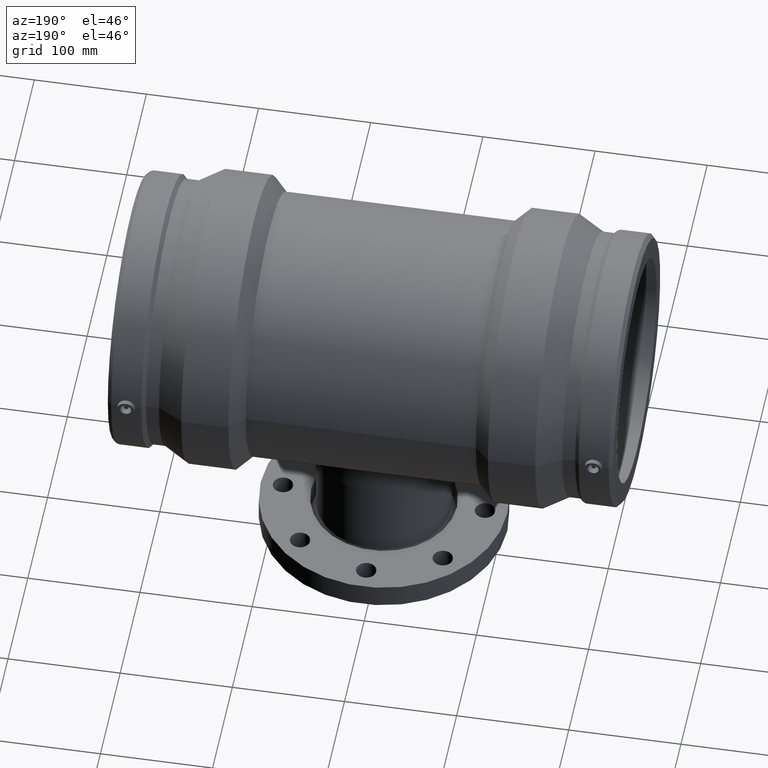
[diagram: clean part render]
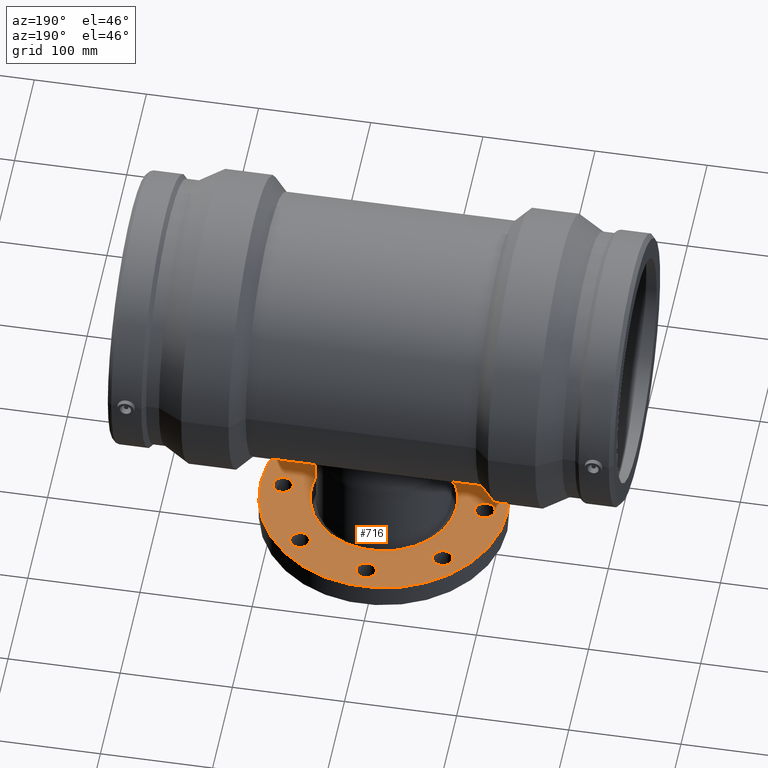
[diagram: same view with one face highlighted and labeled with its STEP entity id]
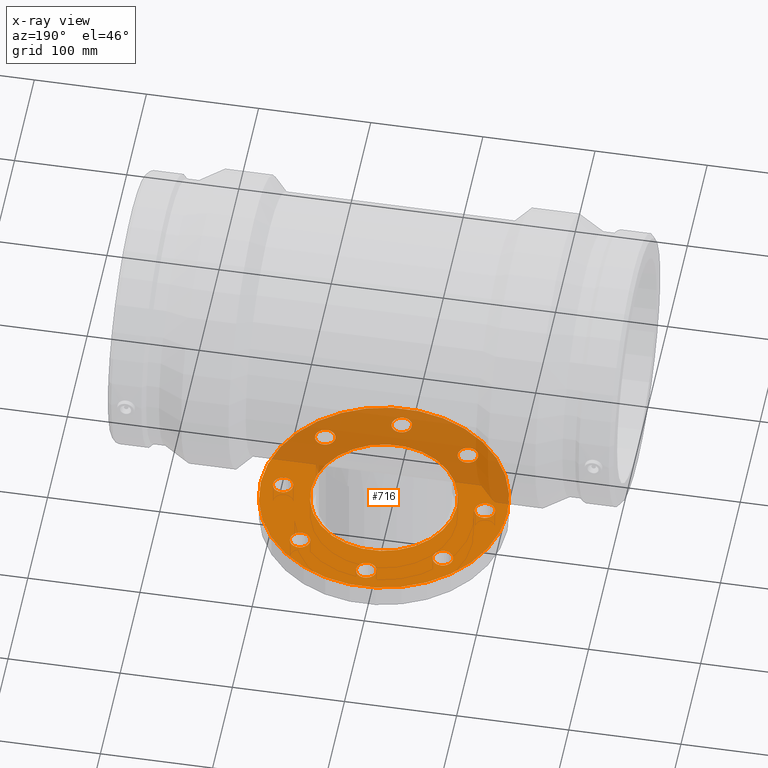
[diagram: x-ray of the same camera — body ghosted, the highlighted face saturated]
A machine part, auxiliary view. The second image highlights one B-rep face of the part: STEP entity #716.
The next image is the same camera in x-ray: the body ghosted, the highlighted face saturated — about 41% of this face is hidden behind the body in this view.
In plain terms, the highlighted planar face has unit normal (0, 0, 1).
Its self-contained STEP definition (entity closure, byte-faithful):
#32=PLANE('',#801);
#60=FACE_BOUND('',#309,.T.);
#61=FACE_BOUND('',#310,.T.);
#62=FACE_BOUND('',#311,.T.);
#63=FACE_BOUND('',#312,.T.);
#64=FACE_BOUND('',#313,.T.);
#65=FACE_BOUND('',#314,.T.);
#66=FACE_BOUND('',#315,.T.);
#67=FACE_BOUND('',#316,.T.);
#68=FACE_BOUND('',#317,.T.);
#121=CIRCLE('',#762,9.);
#123=CIRCLE('',#765,9.);
#125=CIRCLE('',#768,9.);
#127=CIRCLE('',#771,9.);
#129=CIRCLE('',#774,9.);
#131=CIRCLE('',#777,9.);
#133=CIRCLE('',#780,9.);
#135=CIRCLE('',#783,9.);
#144=CIRCLE('',#800,65.);
#145=CIRCLE('',#802,110.);
#232=FACE_OUTER_BOUND('',#308,.T.);
#308=EDGE_LOOP('',(#594));
#309=EDGE_LOOP('',(#595));
#310=EDGE_LOOP('',(#596));
#311=EDGE_LOOP('',(#597));
#312=EDGE_LOOP('',(#598));
#313=EDGE_LOOP('',(#599));
#314=EDGE_LOOP('',(#600));
#315=EDGE_LOOP('',(#601));
#316=EDGE_LOOP('',(#602));
#317=EDGE_LOOP('',(#603));
#421=VERTEX_POINT('',#1407);
#423=VERTEX_POINT('',#1412);
#425=VERTEX_POINT('',#1417);
#427=VERTEX_POINT('',#1422);
#429=VERTEX_POINT('',#1427);
#431=VERTEX_POINT('',#1432);
#433=VERTEX_POINT('',#1437);
#435=VERTEX_POINT('',#1442);
#445=VERTEX_POINT('',#1535);
#446=VERTEX_POINT('',#1538);
#491=EDGE_CURVE('',#421,#421,#121,.T.);
#493=EDGE_CURVE('',#423,#423,#123,.T.);
#495=EDGE_CURVE('',#425,#425,#125,.T.);
#497=EDGE_CURVE('',#427,#427,#127,.T.);
#499=EDGE_CURVE('',#429,#429,#129,.T.);
#501=EDGE_CURVE('',#431,#431,#131,.T.);
#503=EDGE_CURVE('',#433,#433,#133,.T.);
#505=EDGE_CURVE('',#435,#435,#135,.T.);
#515=EDGE_CURVE('',#445,#445,#144,.T.);
#516=EDGE_CURVE('',#446,#446,#145,.T.);
#594=ORIENTED_EDGE('',*,*,#516,.F.);
#595=ORIENTED_EDGE('',*,*,#491,.T.);
#596=ORIENTED_EDGE('',*,*,#493,.T.);
#597=ORIENTED_EDGE('',*,*,#495,.T.);
#598=ORIENTED_EDGE('',*,*,#497,.T.);
#599=ORIENTED_EDGE('',*,*,#499,.T.);
#600=ORIENTED_EDGE('',*,*,#501,.T.);
#601=ORIENTED_EDGE('',*,*,#503,.T.);
#602=ORIENTED_EDGE('',*,*,#505,.T.);
#603=ORIENTED_EDGE('',*,*,#515,.T.);
#716=ADVANCED_FACE('',(#232,#60,#61,#62,#63,#64,#65,#66,#67,#68),#32,.T.);
#762=AXIS2_PLACEMENT_3D('',#1408,#889,#890);
#765=AXIS2_PLACEMENT_3D('',#1413,#895,#896);
#768=AXIS2_PLACEMENT_3D('',#1418,#901,#902);
#771=AXIS2_PLACEMENT_3D('',#1423,#907,#908);
#774=AXIS2_PLACEMENT_3D('',#1428,#913,#914);
#777=AXIS2_PLACEMENT_3D('',#1433,#919,#920);
#780=AXIS2_PLACEMENT_3D('',#1438,#925,#926);
#783=AXIS2_PLACEMENT_3D('',#1443,#931,#932);
#800=AXIS2_PLACEMENT_3D('',#1536,#965,#966);
#801=AXIS2_PLACEMENT_3D('',#1537,#967,#968);
#802=AXIS2_PLACEMENT_3D('',#1539,#969,#970);
#889=DIRECTION('center_axis',(-1.22464679914735E-16,0.,-1.));
#890=DIRECTION('ref_axis',(0.707106781186547,0.707106781186548,0.));
#895=DIRECTION('center_axis',(-1.22464679914735E-16,0.,-1.));
#896=DIRECTION('ref_axis',(-1.2335811384724E-16,1.,0.));
#901=DIRECTION('center_axis',(-1.22464679914735E-16,0.,-1.));
#902=DIRECTION('ref_axis',(-0.707106781186548,0.707106781186547,0.));
#907=DIRECTION('center_axis',(-1.22464679914735E-16,0.,-1.));
#908=DIRECTION('ref_axis',(-1.,-1.2335811384724E-16,0.));
#913=DIRECTION('center_axis',(-1.22464679914735E-16,0.,-1.));
#914=DIRECTION('ref_axis',(-0.707106781186547,-0.707106781186548,0.));
#919=DIRECTION('center_axis',(-1.22464679914735E-16,0.,-1.));
#920=DIRECTION('ref_axis',(0.,-1.,0.));
#925=DIRECTION('center_axis',(-1.22464679914735E-16,0.,-1.));
#926=DIRECTION('ref_axis',(0.707106781186548,-0.707106781186547,0.));
#931=DIRECTION('center_axis',(-1.22464679914735E-16,0.,-1.));
#932=DIRECTION('ref_axis',(1.,0.,0.));
#965=DIRECTION('center_axis',(-1.22464679914735E-16,0.,-1.));
#966=DIRECTION('ref_axis',(1.,0.,-1.22464679914735E-16));
#967=DIRECTION('center_axis',(1.22464679914735E-16,0.,1.));
#968=DIRECTION('ref_axis',(1.,0.,0.));
#969=DIRECTION('center_axis',(-1.22464679914735E-16,0.,-1.));
#970=DIRECTION('ref_axis',(1.,0.,-1.22464679914735E-16));
#1407=CARTESIAN_POINT('',(-70.0035713374682,-70.0035713374682,-201.));
#1408=CARTESIAN_POINT('Origin',(-63.6396103067893,-63.6396103067893,-201.));
#1412=CARTESIAN_POINT('',(-1.64860279467327E-14,-99.,-201.));
#1413=CARTESIAN_POINT('Origin',(-7.60424374973143E-15,-90.,-201.));
#1417=CARTESIAN_POINT('',(70.0035713374682,-70.0035713374682,-201.));
#1418=CARTESIAN_POINT('Origin',(63.6396103067893,-63.6396103067893,-201.));
#1422=CARTESIAN_POINT('',(99.,8.2870841988113E-15,-201.));
#1423=CARTESIAN_POINT('Origin',(90.,1.71688683958126E-14,-201.));
#1427=CARTESIAN_POINT('',(70.0035713374682,70.0035713374682,-201.));
#1428=CARTESIAN_POINT('Origin',(63.6396103067893,63.6396103067893,-201.));
#1432=CARTESIAN_POINT('',(-3.42495963407352E-14,99.,-201.));
#1433=CARTESIAN_POINT('Origin',(-2.53678121437339E-14,90.,-201.));
#1437=CARTESIAN_POINT('',(-70.0035713374682,70.0035713374682,-201.));
#1438=CARTESIAN_POINT('Origin',(-63.6396103067893,63.6396103067893,-201.));
#1442=CARTESIAN_POINT('',(-99.,1.10218211923262E-15,-201.));
#1443=CARTESIAN_POINT('Origin',(-90.,0.,-201.));
#1535=CARTESIAN_POINT('',(-65.,0.,-201.));
#1536=CARTESIAN_POINT('Origin',(-2.46154006628618E-14,0.,-201.));
#1537=CARTESIAN_POINT('Origin',(-110.,0.,-201.));
#1538=CARTESIAN_POINT('',(-110.,0.,-201.));
#1539=CARTESIAN_POINT('Origin',(-2.46154006628618E-14,0.,-201.));